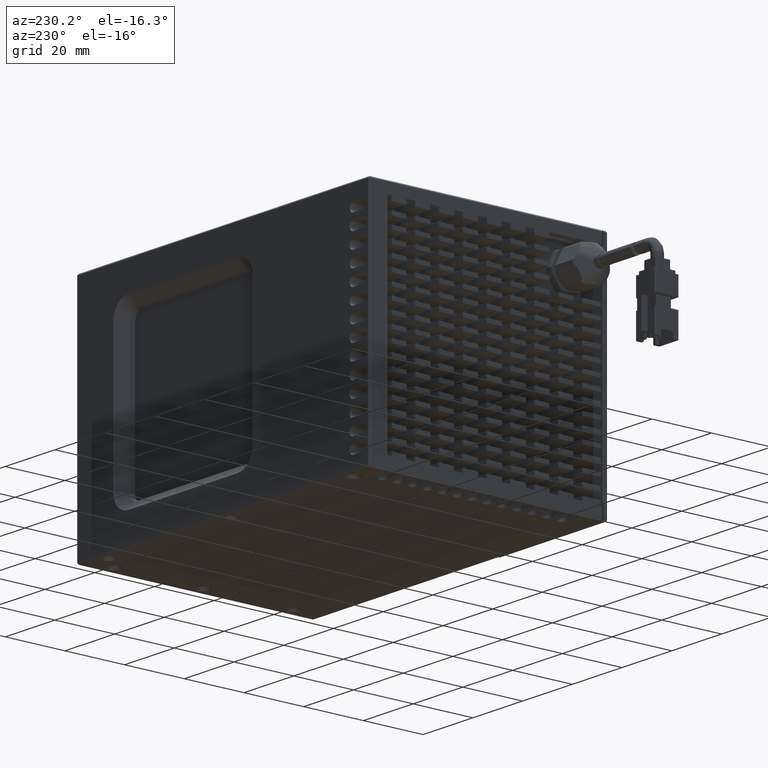
[diagram: clean part render]
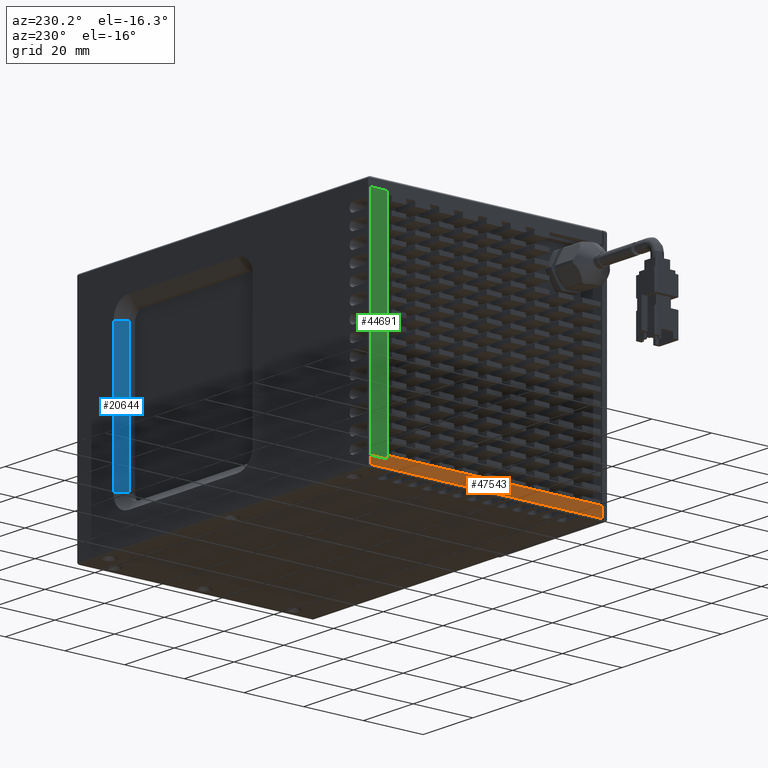
[diagram: same view with three faces highlighted in distinct colors, each labeled with its STEP entity id]
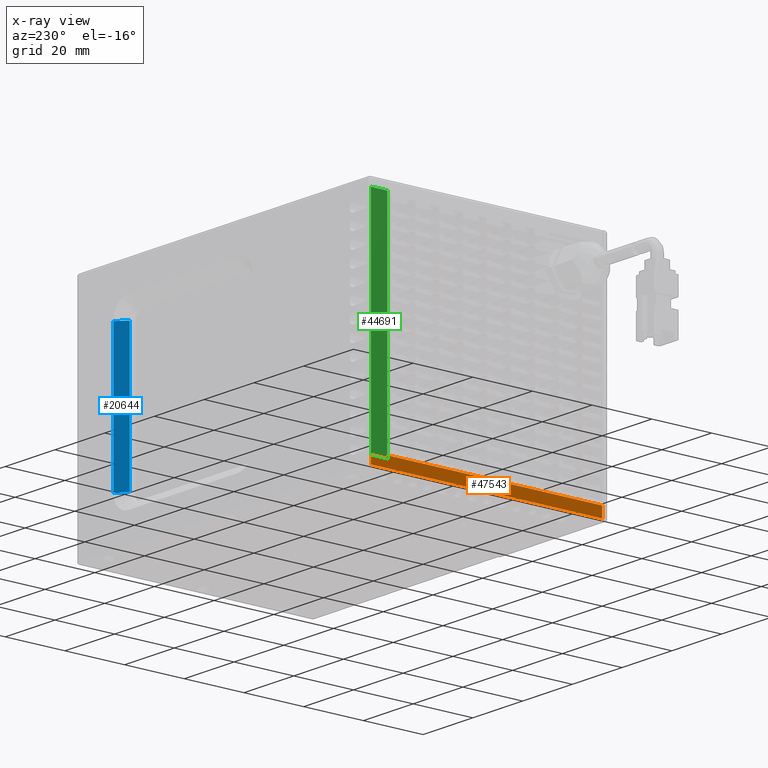
[diagram: x-ray of the same camera — body ghosted, the three highlighted faces saturated]
A machine part, auxiliary view with three faces highlighted in distinct colors.
The next image is the same camera in x-ray (body ghosted, the three faces saturated) — at least one of them is partly hidden behind the body in this view.
Their STEP definitions:

[orange] entity #47543 — the highlighted planar face has unit normal (1, 0, 0).
#371 = DIRECTION ( 'NONE',  ( -1.244091509459439600E-016, 1.000000000000000000, 0.0000000000000000000 ) ) ;
#456 = VERTEX_POINT ( 'NONE', #2292 ) ;
#598 = AXIS2_PLACEMENT_3D ( 'NONE', #66250, #33214, #371 ) ;
#983 = CARTESIAN_POINT ( 'NONE',  ( -72.96055359734604900, -15.91808924827791600, 0.5000000000095529100 ) ) ;
#1102 = CARTESIAN_POINT ( 'NONE',  ( -72.96055359734606300, 61.58191075172207700, 3.000000000009549700 ) ) ;
#1569 = VECTOR ( 'NONE', #48973, 1000.000000000000000 ) ;
#1897 = ORIENTED_EDGE ( 'NONE', *, *, #33367, .T. ) ;
#2292 = CARTESIAN_POINT ( 'NONE',  ( -72.96055359734604900, -15.91808924827790900, 4.000000000009549700 ) ) ;
#3553 = VECTOR ( 'NONE', #54861, 1000.000000000000000 ) ;
#3856 = LINE ( 'NONE', #35537, #60607 ) ;
#4171 = VERTEX_POINT ( 'NONE', #11704 ) ;
#8022 = ORIENTED_EDGE ( 'NONE', *, *, #51123, .T. ) ;
#8516 = EDGE_CURVE ( 'NONE', #57240, #24728, #12059, .T. ) ;
#8819 = CARTESIAN_POINT ( 'NONE',  ( -72.96055359734604900, 62.08191075172209100, 4.000000000009549700 ) ) ;
#10117 = DIRECTION ( 'NONE',  ( 0.0000000000000000000, -0.0000000000000000000, 1.000000000000000000 ) ) ;
#11659 = CARTESIAN_POINT ( 'NONE',  ( -72.96055359734604900, -15.91808924827791200, -6.605178578685809000 ) ) ;
#11704 = CARTESIAN_POINT ( 'NONE',  ( -72.96055359734607700, 61.58191075172206300, 0.5000000000095495800 ) ) ;
#12059 = LINE ( 'NONE', #20874, #39491 ) ;
#14081 = DIRECTION ( 'NONE',  ( -0.0000000000000000000, -1.000000000000000000, -0.0000000000000000000 ) ) ;
#16122 = CARTESIAN_POINT ( 'NONE',  ( -72.96055359734606300, 62.08191075172207700, 0.5000000000095521400 ) ) ;
#16477 = LINE ( 'NONE', #11659, #3553 ) ;
#18630 = CARTESIAN_POINT ( 'NONE',  ( -72.96055359734604900, 56.08091075172208700, 4.000000000009549700 ) ) ;
#20131 = ORIENTED_EDGE ( 'NONE', *, *, #54636, .F. ) ;
#20874 = CARTESIAN_POINT ( 'NONE',  ( -72.96055359734606300, 56.08091075172208700, -5.999999999990450300 ) ) ;
#21167 = ORIENTED_EDGE ( 'NONE', *, *, #68552, .F. ) ;
#22435 = ORIENTED_EDGE ( 'NONE', *, *, #8516, .F. ) ;
#24493 = FACE_OUTER_BOUND ( 'NONE', #59427, .T. ) ;
#24728 = VERTEX_POINT ( 'NONE', #18630 ) ;
#33214 = DIRECTION ( 'NONE',  ( 1.000000000000000000, 1.244091509459439600E-016, 0.0000000000000000000 ) ) ;
#33367 = EDGE_CURVE ( 'NONE', #4171, #56138, #58322, .T. ) ;
#33636 = DIRECTION ( 'NONE',  ( 0.0000000000000000000, 1.000000000000000000, 0.0000000000000000000 ) ) ;
#35537 = CARTESIAN_POINT ( 'NONE',  ( -72.96055359734606300, 61.58191075172207700, -5.999999999990450300 ) ) ;
#37991 = VECTOR ( 'NONE', #14081, 1000.000000000000000 ) ;
#39491 = VECTOR ( 'NONE', #10117, 1000.000000000000000 ) ;
#39715 = LINE ( 'NONE', #8819, #37991 ) ;
#43900 = ORIENTED_EDGE ( 'NONE', *, *, #68235, .F. ) ;
#45613 = VECTOR ( 'NONE', #33636, 1000.000000000000000 ) ;
#46550 = DIRECTION ( 'NONE',  ( 0.0000000000000000000, -0.0000000000000000000, 1.000000000000000000 ) ) ;
#47543 = ADVANCED_FACE ( 'NONE', ( #24493 ), #60375, .F. ) ;
#48973 = DIRECTION ( 'NONE',  ( 6.220457547297229900E-017, -1.000000000000000000, 6.220457547297196600E-017 ) ) ;
#51123 = EDGE_CURVE ( 'NONE', #57240, #65880, #61956, .T. ) ;
#54636 = EDGE_CURVE ( 'NONE', #4171, #65880, #3856, .T. ) ;
#54861 = DIRECTION ( 'NONE',  ( 0.0000000000000000000, -0.0000000000000000000, -1.000000000000000000 ) ) ;
#56138 = VERTEX_POINT ( 'NONE', #983 ) ;
#57240 = VERTEX_POINT ( 'NONE', #63212 ) ;
#58322 = LINE ( 'NONE', #16122, #1569 ) ;
#59427 = EDGE_LOOP ( 'NONE', ( #20131, #1897, #21167, #43900, #22435, #8022 ) ) ;
#60375 = PLANE ( 'NONE',  #598 ) ;
#60607 = VECTOR ( 'NONE', #46550, 1000.000000000000000 ) ;
#61051 = CARTESIAN_POINT ( 'NONE',  ( -72.96055359734604900, -17.33732806382034400, 3.000000000009549700 ) ) ;
#61956 = LINE ( 'NONE', #61051, #45613 ) ;
#63212 = CARTESIAN_POINT ( 'NONE',  ( -72.96055359734604900, 56.08091075172208700, 3.000000000009549700 ) ) ;
#65880 = VERTEX_POINT ( 'NONE', #1102 ) ;
#66250 = CARTESIAN_POINT ( 'NONE',  ( -72.96055359734606300, 83.69180701801022300, -5.999999999990450300 ) ) ;
#68235 = EDGE_CURVE ( 'NONE', #24728, #456, #39715, .T. ) ;
#68552 = EDGE_CURVE ( 'NONE', #456, #56138, #16477, .T. ) ;

[blue] entity #20644 — the highlighted planar face has unit normal (0.7071, -0.7071, 0).
#1384 = EDGE_CURVE ( 'NONE', #14620, #67765, #63856, .T. ) ;
#2540 = CARTESIAN_POINT ( 'NONE',  ( 499024.0394464050200, 499056.0819107517000, 62.00000000013550000 ) ) ;
#3954 = EDGE_CURVE ( 'NONE', #14620, #66844, #55399, .T. ) ;
#6389 = CARTESIAN_POINT ( 'NONE',  ( 27.03944640265396900, 59.08191075172209100, 16.00000000000955000 ) ) ;
#7220 = EDGE_CURVE ( 'NONE', #67765, #40298, #41664, .T. ) ;
#7572 = DIRECTION ( 'NONE',  ( 0.7071067811865458000, -0.7071067811865492400, 1.492121119266584600E-016 ) ) ;
#8144 = ORIENTED_EDGE ( 'NONE', *, *, #1384, .F. ) ;
#10020 = ORIENTED_EDGE ( 'NONE', *, *, #3954, .T. ) ;
#11456 = DIRECTION ( 'NONE',  ( 2.317037443647223400E-016, 2.068595200770910400E-017, -1.000000000000000000 ) ) ;
#13039 = CARTESIAN_POINT ( 'NONE',  ( 27.03944640265396900, 59.08191075172209100, 16.00000000000955000 ) ) ;
#14620 = VERTEX_POINT ( 'NONE', #22720 ) ;
#14648 = AXIS2_PLACEMENT_3D ( 'NONE', #40431, #7572, #45949 ) ;
#18324 = PLANE ( 'NONE',  #14648 ) ;
#20644 = ADVANCED_FACE ( 'NONE', ( #49585 ), #18324, .F. ) ;
#22720 = CARTESIAN_POINT ( 'NONE',  ( 27.03944640263939900, 59.08191075174345700, 62.00000000000956400 ) ) ;
#26980 = DIRECTION ( 'NONE',  ( -2.317037443647223400E-016, -2.068595200770910400E-017, 1.000000000000000000 ) ) ;
#27213 = LINE ( 'NONE', #49074, #71087 ) ;
#28612 = EDGE_CURVE ( 'NONE', #40298, #66844, #27213, .T. ) ;
#32827 = VECTOR ( 'NONE', #11456, 1000.000000000000000 ) ;
#35342 = EDGE_LOOP ( 'NONE', ( #51542, #49759, #8144, #10020 ) ) ;
#35454 = DIRECTION ( 'NONE',  ( 0.7071067811865492400, 0.7071067811865458000, 1.784664658065603900E-016 ) ) ;
#40298 = VERTEX_POINT ( 'NONE', #43899 ) ;
#40431 = CARTESIAN_POINT ( 'NONE',  ( 27.03944640265396900, 59.08191075172209100, 16.00000000000955000 ) ) ;
#41664 = LINE ( 'NONE', #13039, #65775 ) ;
#42753 = CARTESIAN_POINT ( 'NONE',  ( 27.03944640264668900, 59.08191075173277800, 16.00000000000955000 ) ) ;
#43899 = CARTESIAN_POINT ( 'NONE',  ( 30.03944640264740000, 62.08191075171549800, 16.00000000000955000 ) ) ;
#45949 = DIRECTION ( 'NONE',  ( -0.7071067811865492400, -0.7071067811865458000, -1.784664658065603900E-016 ) ) ;
#49074 = CARTESIAN_POINT ( 'NONE',  ( 30.03944640265398600, 62.08191075172209100, 3.000000000009578100 ) ) ;
#49585 = FACE_OUTER_BOUND ( 'NONE', #35342, .T. ) ;
#49759 = ORIENTED_EDGE ( 'NONE', *, *, #7220, .F. ) ;
#51542 = ORIENTED_EDGE ( 'NONE', *, *, #28612, .F. ) ;
#55399 = LINE ( 'NONE', #2540, #68315 ) ;
#60496 = CARTESIAN_POINT ( 'NONE',  ( 30.03944640265748200, 62.08191075173687100, 62.00000000000956400 ) ) ;
#63856 = LINE ( 'NONE', #6389, #32827 ) ;
#65775 = VECTOR ( 'NONE', #67816, 1000.000000000000000 ) ;
#66844 = VERTEX_POINT ( 'NONE', #60496 ) ;
#67765 = VERTEX_POINT ( 'NONE', #42753 ) ;
#67816 = DIRECTION ( 'NONE',  ( 0.7071067811865492400, 0.7071067811865458000, 1.784664658065603900E-016 ) ) ;
#68315 = VECTOR ( 'NONE', #35454, 1000.000000000000100 ) ;
#71087 = VECTOR ( 'NONE', #26980, 1000.000000000000000 ) ;

[green] entity #44691 — the highlighted planar face has unit normal (1, -0, 0).
#511 = CARTESIAN_POINT ( 'NONE',  ( -72.96055359734604900, 61.58191075172210600, 3.000000000009550600 ) ) ;
#837 = CARTESIAN_POINT ( 'NONE',  ( -72.96055359734604900, 62.08191075172210600, 3.000000000009550600 ) ) ;
#987 = EDGE_CURVE ( 'NONE', #7017, #33387, #47495, .T. ) ;
#4094 = LINE ( 'NONE', #511, #60860 ) ;
#5275 = CARTESIAN_POINT ( 'NONE',  ( -72.96055359734604900, 56.08191075172209800, 3.000000000009550600 ) ) ;
#6013 = DIRECTION ( 'NONE',  ( -2.317037443647223400E-016, -2.068595200770910400E-017, 1.000000000000000000 ) ) ;
#6573 = CARTESIAN_POINT ( 'NONE',  ( -72.96055359734607700, 61.58191075172209800, 75.00000000000956400 ) ) ;
#7017 = VERTEX_POINT ( 'NONE', #11153 ) ;
#7112 = VERTEX_POINT ( 'NONE', #6573 ) ;
#11153 = CARTESIAN_POINT ( 'NONE',  ( -72.96055359734604900, 61.58191075172210600, 3.000000000009550600 ) ) ;
#13495 = CARTESIAN_POINT ( 'NONE',  ( -72.96055359734607700, 56.08191075172209800, 75.00000000000955000 ) ) ;
#15171 = DIRECTION ( 'NONE',  ( 1.000000000000000000, -1.177236761232564000E-016, 2.317037443647223400E-016 ) ) ;
#28558 = VECTOR ( 'NONE', #52729, 1000.000000000000000 ) ;
#32596 = VERTEX_POINT ( 'NONE', #13495 ) ;
#33387 = VERTEX_POINT ( 'NONE', #5275 ) ;
#33473 = EDGE_CURVE ( 'NONE', #7017, #7112, #4094, .T. ) ;
#34273 = EDGE_CURVE ( 'NONE', #32596, #7112, #39055, .T. ) ;
#38979 = DIRECTION ( 'NONE',  ( -1.177236761232564000E-016, -1.000000000000000000, -2.068595200770913200E-017 ) ) ;
#39055 = LINE ( 'NONE', #57300, #53678 ) ;
#42418 = VECTOR ( 'NONE', #38979, 1000.000000000000000 ) ;
#44691 = ADVANCED_FACE ( 'NONE', ( #66373 ), #53336, .F. ) ;
#47495 = LINE ( 'NONE', #837, #42418 ) ;
#48010 = CARTESIAN_POINT ( 'NONE',  ( -72.96055359734607700, 62.08191075172209800, 75.00000000000955000 ) ) ;
#49222 = ORIENTED_EDGE ( 'NONE', *, *, #987, .T. ) ;
#50754 = ORIENTED_EDGE ( 'NONE', *, *, #55243, .T. ) ;
#52729 = DIRECTION ( 'NONE',  ( -2.317037443647223400E-016, -2.068595200770910400E-017, 1.000000000000000000 ) ) ;
#52973 = CARTESIAN_POINT ( 'NONE',  ( -72.96055359734604900, 56.08191075172209800, 3.000000000009550600 ) ) ;
#53336 = PLANE ( 'NONE',  #63408 ) ;
#53562 = DIRECTION ( 'NONE',  ( -1.177236761232564000E-016, -1.000000000000000000, -2.068595200770913200E-017 ) ) ;
#53678 = VECTOR ( 'NONE', #62800, 1000.000000000000000 ) ;
#55243 = EDGE_CURVE ( 'NONE', #33387, #32596, #65550, .T. ) ;
#57028 = ORIENTED_EDGE ( 'NONE', *, *, #34273, .T. ) ;
#57300 = CARTESIAN_POINT ( 'NONE',  ( -72.96055359734607700, 62.08191075172209800, 75.00000000000955000 ) ) ;
#60860 = VECTOR ( 'NONE', #6013, 1000.000000000000000 ) ;
#62800 = DIRECTION ( 'NONE',  ( 1.177236761232564000E-016, 1.000000000000000000, 2.068595200770913200E-017 ) ) ;
#63408 = AXIS2_PLACEMENT_3D ( 'NONE', #48010, #15171, #53562 ) ;
#65550 = LINE ( 'NONE', #52973, #28558 ) ;
#66373 = FACE_OUTER_BOUND ( 'NONE', #71025, .T. ) ;
#68399 = ORIENTED_EDGE ( 'NONE', *, *, #33473, .F. ) ;
#71025 = EDGE_LOOP ( 'NONE', ( #68399, #49222, #50754, #57028 ) ) ;